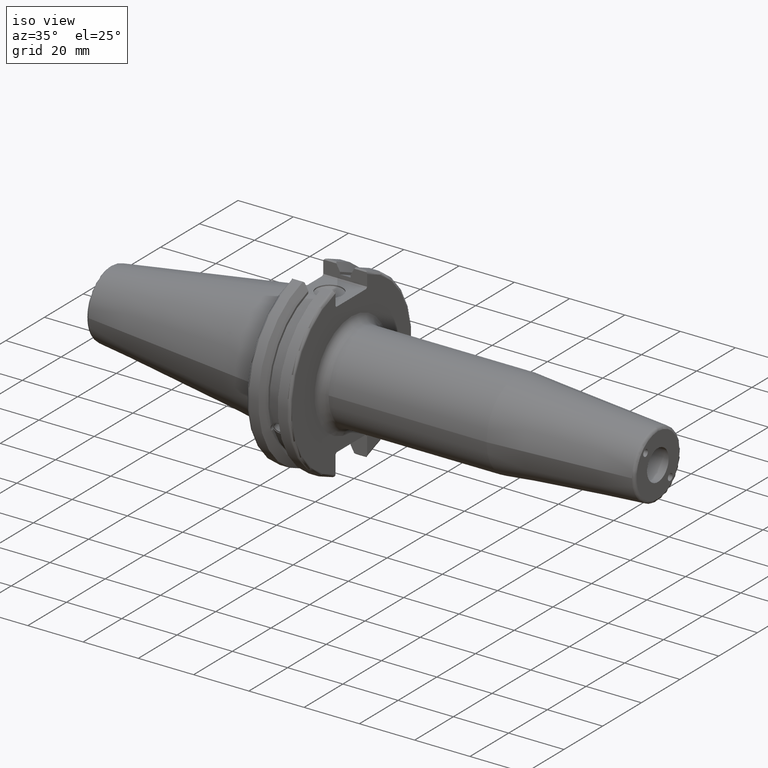
[diagram: clean part render]
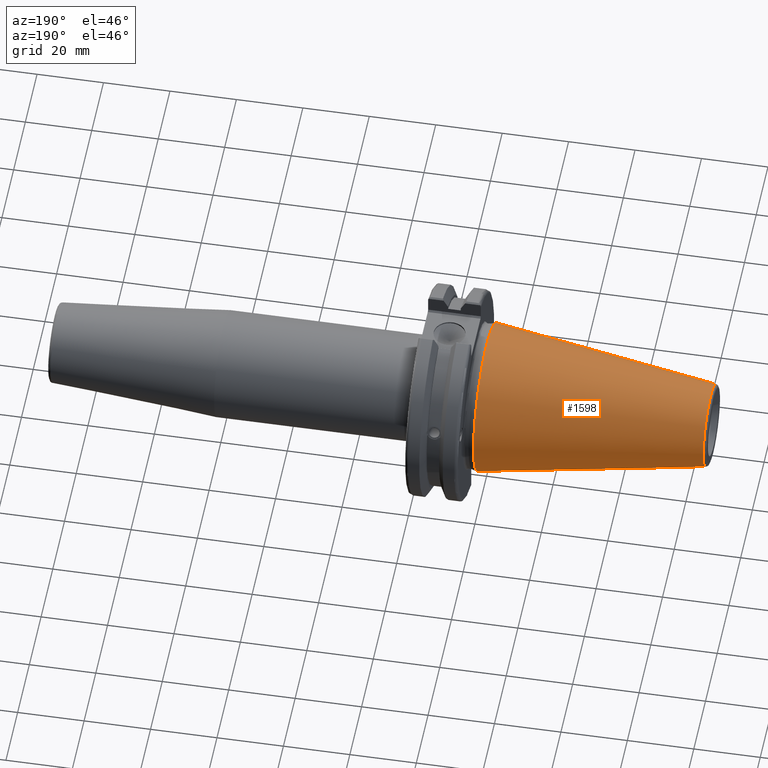
[diagram: tour spotlight — one face highlighted and labeled with its STEP entity id]
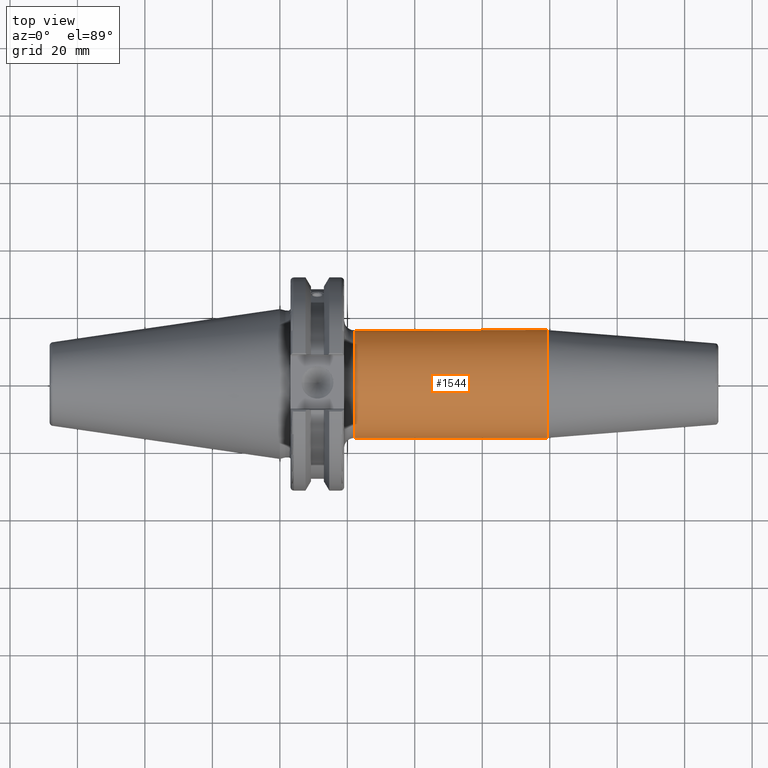
[diagram: tour spotlight — one face highlighted and labeled with its STEP entity id]
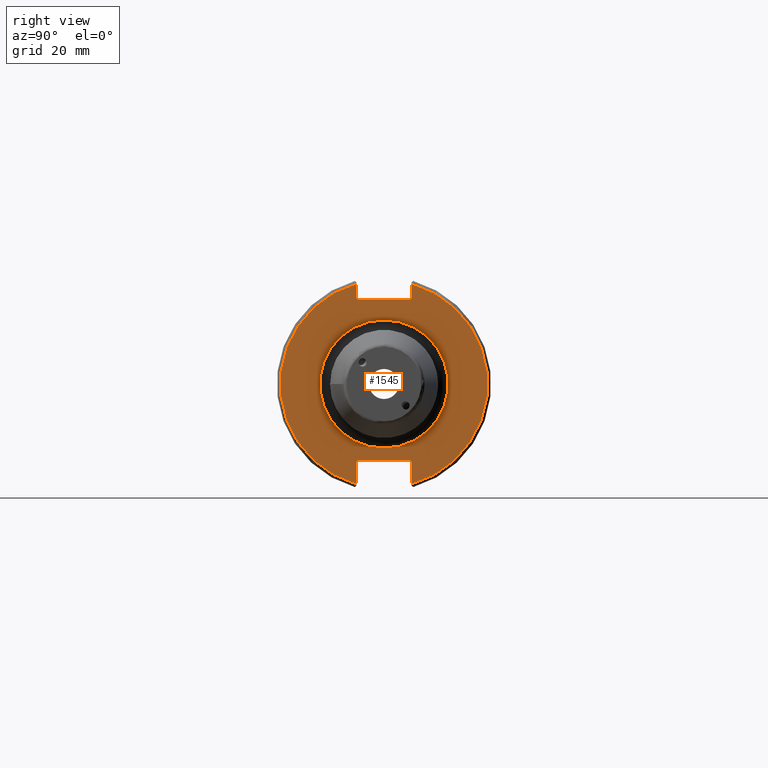
[diagram: tour spotlight — one face highlighted and labeled with its STEP entity id]
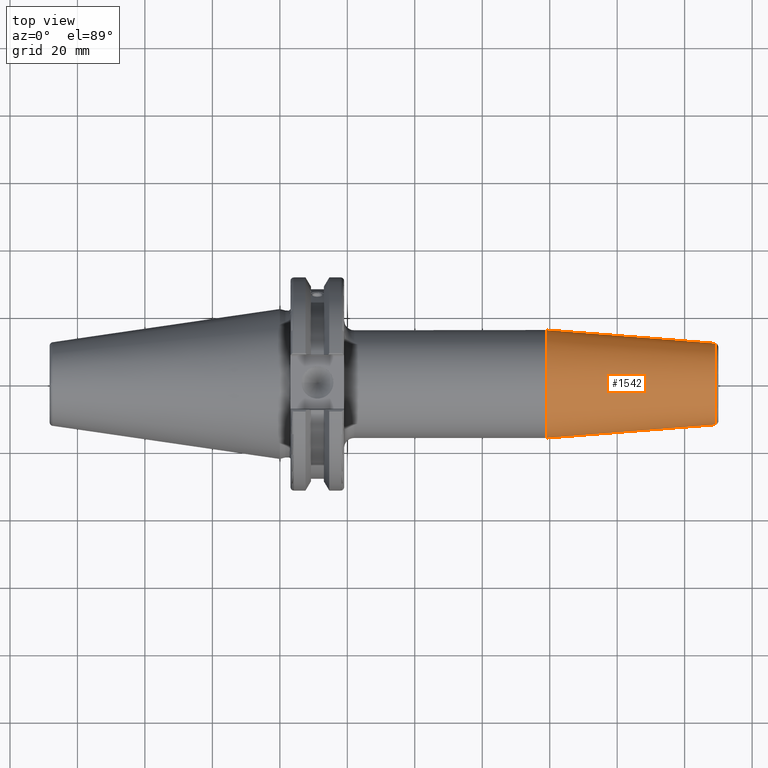
[diagram: tour spotlight — one face highlighted and labeled with its STEP entity id]
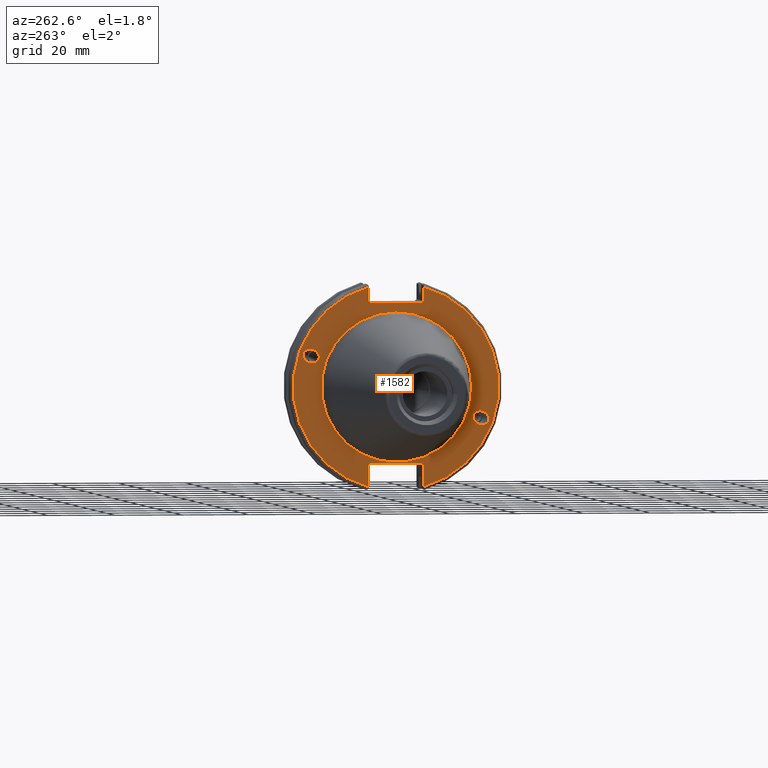
[diagram: tour spotlight — one face highlighted and labeled with its STEP entity id]
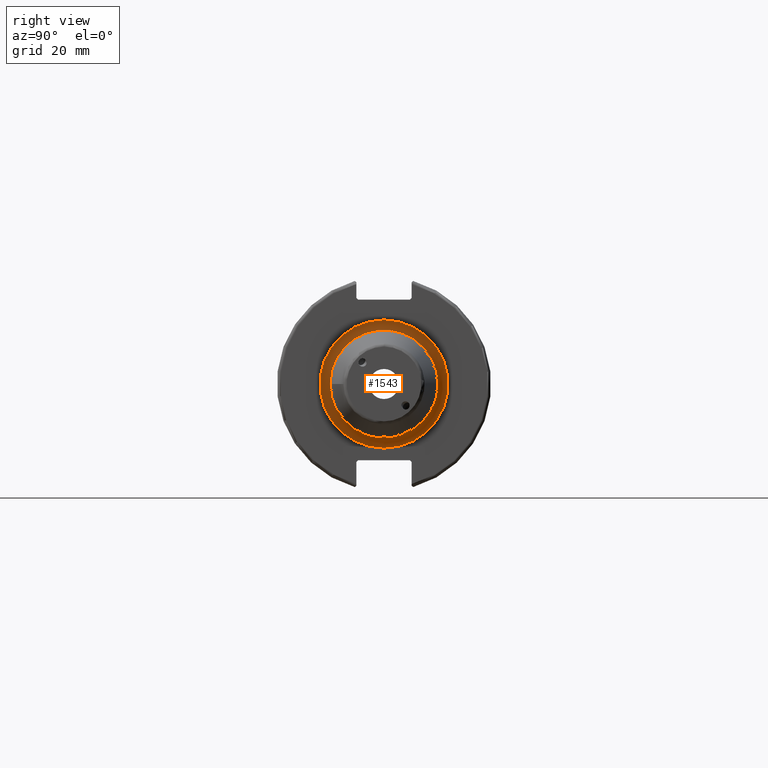
[diagram: tour spotlight — one face highlighted and labeled with its STEP entity id]
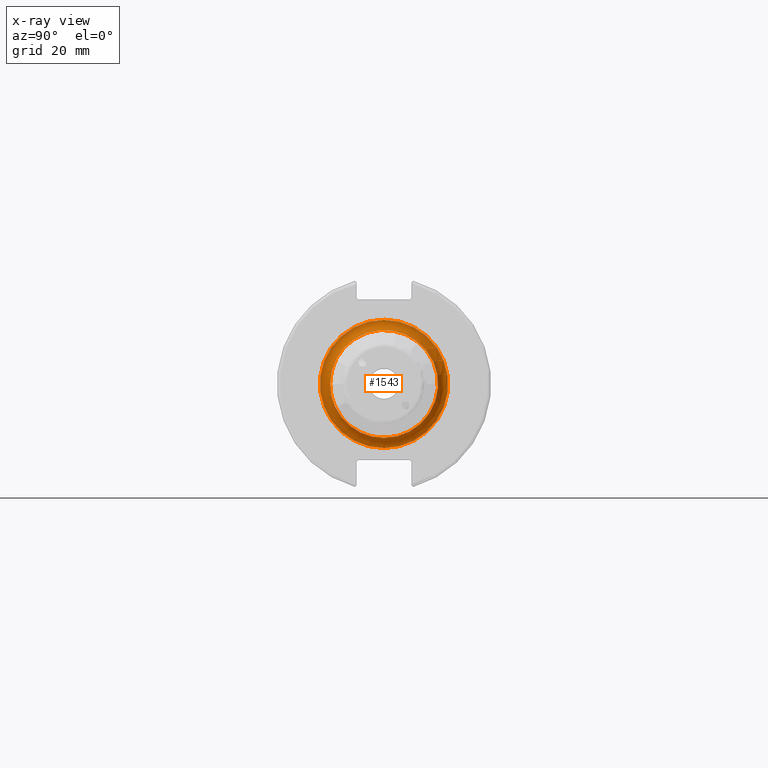
[diagram: x-ray of the same camera — body ghosted, this tour face saturated]
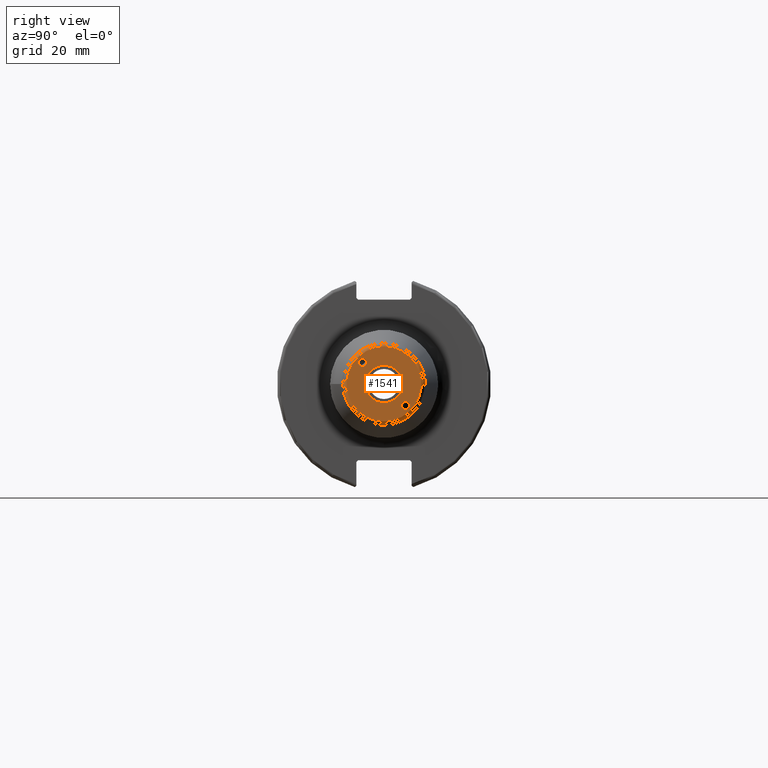
[diagram: tour spotlight — one face highlighted and labeled with its STEP entity id]
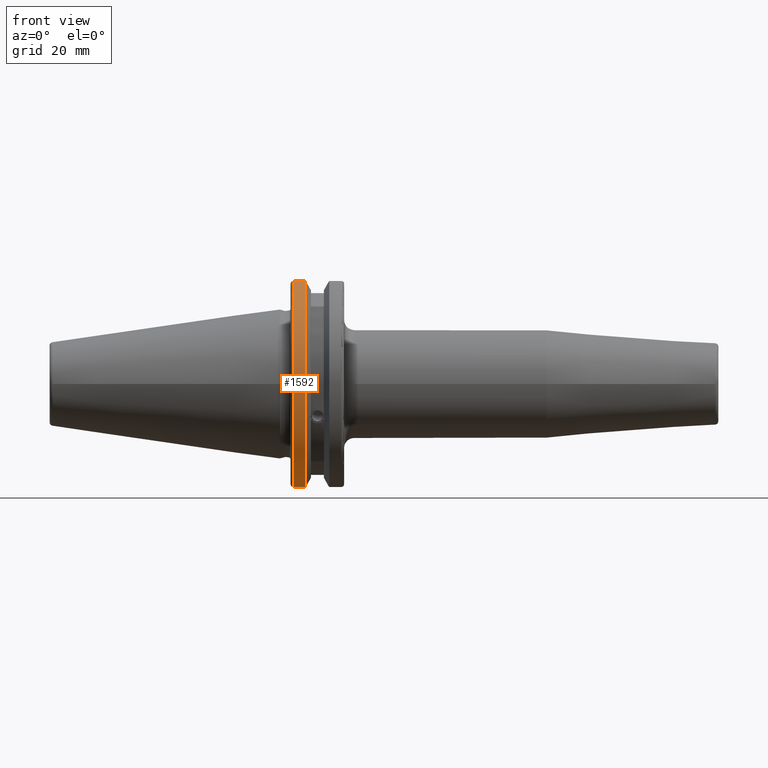
[diagram: tour spotlight — one face highlighted and labeled with its STEP entity id]
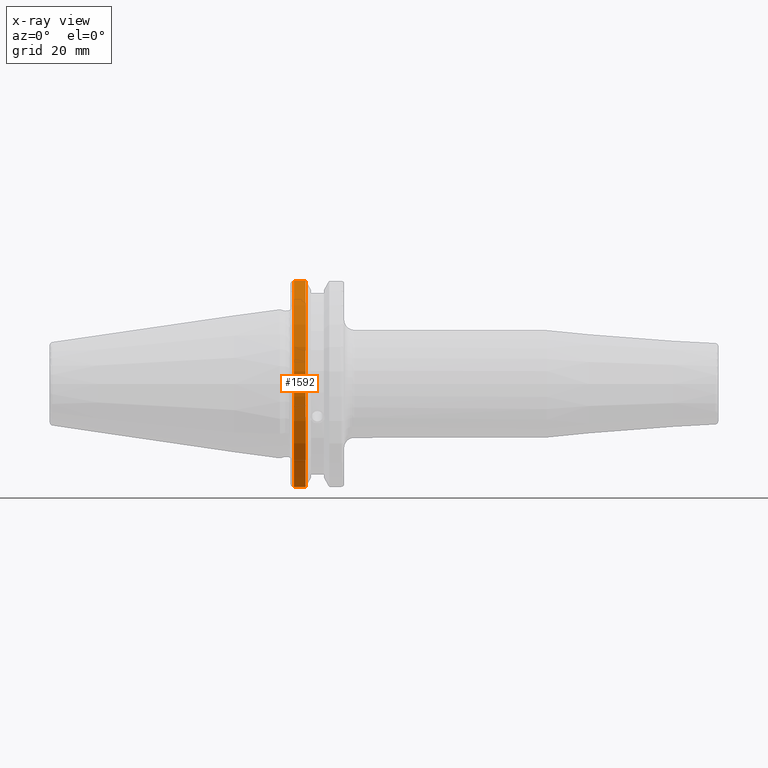
[diagram: x-ray of the same camera — body ghosted, this tour face saturated]
A machine part: a face-by-face anatomy tour. The part has 91 B-rep faces; the first image is the clean iso view, then the 8 largest visible faces are spotlighted one at a time (largest first), each with its STEP entity span.

Face 1 — auxiliary view, entity #1598. In plain terms, the highlighted conical surface has half-angle 8.297 deg.
Definition (entity closure, byte-faithful):
#237=FACE_OUTER_BOUND('',#344,.T.);
#344=EDGE_LOOP('',(#1389,#1390,#1391,#1392,#1393));
#453=LINE('',#3026,#551);
#551=VECTOR('',#2210,17.2484375);
#629=CIRCLE('',#1789,12.3966635780937);
#630=CIRCLE('',#1790,12.3966635780937);
#634=CIRCLE('',#1796,22.225);
#789=VERTEX_POINT('',#3013);
#790=VERTEX_POINT('',#3014);
#793=VERTEX_POINT('',#3024);
#1004=EDGE_CURVE('',#789,#790,#629,.T.);
#1005=EDGE_CURVE('',#790,#789,#630,.T.);
#1009=EDGE_CURVE('',#793,#793,#634,.T.);
#1010=EDGE_CURVE('',#793,#790,#453,.T.);
#1389=ORIENTED_EDGE('',*,*,#1009,.F.);
#1390=ORIENTED_EDGE('',*,*,#1010,.T.);
#1391=ORIENTED_EDGE('',*,*,#1004,.F.);
#1392=ORIENTED_EDGE('',*,*,#1005,.F.);
#1393=ORIENTED_EDGE('',*,*,#1010,.F.);
#1530=CONICAL_SURFACE('',#1795,17.2484375,0.144812498238939);
#1598=ADVANCED_FACE('',(#237),#1530,.T.);
#1789=AXIS2_PLACEMENT_3D('',#3015,#2194,#2195);
#1790=AXIS2_PLACEMENT_3D('',#3016,#2196,#2197);
#1795=AXIS2_PLACEMENT_3D('',#3023,#2206,#2207);
#1796=AXIS2_PLACEMENT_3D('',#3025,#2208,#2209);
#2194=DIRECTION('center_axis',(-1.,0.,0.));
#2195=DIRECTION('ref_axis',(0.,-1.,3.06161699786838E-17));
#2196=DIRECTION('center_axis',(-1.,0.,0.));
#2197=DIRECTION('ref_axis',(0.,-1.,3.06161699786838E-17));
#2206=DIRECTION('center_axis',(1.,0.,0.));
#2207=DIRECTION('ref_axis',(0.,1.,0.));
#2208=DIRECTION('center_axis',(1.,0.,0.));
#2209=DIRECTION('ref_axis',(0.,0.,-1.));
#2210=DIRECTION('',(-0.989532981063282,0.144306893071729,1.76724974695192E-17));
#3013=CARTESIAN_POINT('',(-67.3943068930717,-1.5181534371019E-15,12.3966635780937));
#3014=CARTESIAN_POINT('',(-67.3943068930718,-12.3966635780937,-1.5181534371019E-15));
#3015=CARTESIAN_POINT('Origin',(-67.3943068930717,0.,-1.89769179637738E-15));
#3016=CARTESIAN_POINT('Origin',(-67.3943068930717,0.,-1.89769179637738E-15));
#3023=CARTESIAN_POINT('Origin',(-34.125,0.,0.));
#3024=CARTESIAN_POINT('',(0.,-22.225,-2.72177751110499E-15));
#3025=CARTESIAN_POINT('Origin',(0.,0.,0.));
#3026=CARTESIAN_POINT('',(-34.125,-17.2484375,-2.11232437746682E-15));

Face 2 — top view, entity #1544. In plain terms, the highlighted cylindrical surface (bore or boss wall) has radius 16 mm, axis along (1, 0, 0).
Definition (entity closure, byte-faithful):
#146=CYLINDRICAL_SURFACE('',#1672,16.);
#183=FACE_OUTER_BOUND('',#277,.T.);
#277=EDGE_LOOP('',(#1076,#1077,#1078,#1079,#1080));
#380=LINE('',#2351,#478);
#478=VECTOR('',#1889,16.);
#578=CIRCLE('',#1666,16.);
#579=CIRCLE('',#1668,16.);
#582=CIRCLE('',#1671,16.);
#656=VERTEX_POINT('',#2339);
#657=VERTEX_POINT('',#2343);
#658=VERTEX_POINT('',#2344);
#818=EDGE_CURVE('',#656,#656,#578,.T.);
#819=EDGE_CURVE('',#657,#658,#579,.T.);
#822=EDGE_CURVE('',#658,#657,#582,.T.);
#823=EDGE_CURVE('',#656,#657,#380,.T.);
#1076=ORIENTED_EDGE('',*,*,#818,.F.);
#1077=ORIENTED_EDGE('',*,*,#823,.T.);
#1078=ORIENTED_EDGE('',*,*,#822,.F.);
#1079=ORIENTED_EDGE('',*,*,#819,.F.);
#1080=ORIENTED_EDGE('',*,*,#823,.F.);
#1544=ADVANCED_FACE('',(#183),#146,.T.);
#1666=AXIS2_PLACEMENT_3D('',#2341,#1875,#1876);
#1668=AXIS2_PLACEMENT_3D('',#2345,#1879,#1880);
#1671=AXIS2_PLACEMENT_3D('',#2349,#1885,#1886);
#1672=AXIS2_PLACEMENT_3D('',#2350,#1887,#1888);
#1875=DIRECTION('center_axis',(1.,0.,0.));
#1876=DIRECTION('ref_axis',(0.,0.,-1.));
#1879=DIRECTION('center_axis',(-1.,0.,0.));
#1880=DIRECTION('ref_axis',(0.,-1.,-1.22464679914735E-16));
#1885=DIRECTION('center_axis',(-1.,0.,0.));
#1886=DIRECTION('ref_axis',(0.,-1.,-1.22464679914735E-16));
#1887=DIRECTION('center_axis',(1.,0.,0.));
#1888=DIRECTION('ref_axis',(0.,1.,0.));
#1889=DIRECTION('',(-1.,0.,0.));
#2339=CARTESIAN_POINT('',(79.1751810553012,-16.,-1.95943487863577E-15));
#2341=CARTESIAN_POINT('Origin',(79.1751810553012,0.,0.));
#2343=CARTESIAN_POINT('',(22.05,-16.,-1.95943487863577E-15));
#2344=CARTESIAN_POINT('',(22.05,-1.95943487863577E-15,-16.));
#2345=CARTESIAN_POINT('Origin',(22.05,0.,0.));
#2349=CARTESIAN_POINT('Origin',(22.05,0.,0.));
#2350=CARTESIAN_POINT('Origin',(49.1125905276506,0.,0.));
#2351=CARTESIAN_POINT('',(49.1125905276506,-16.,-1.95943487863577E-15));

Face 3 — right view, entity #1545. In plain terms, the highlighted planar face has unit normal (1, 0, 0).
Definition (entity closure, byte-faithful):
#64=FACE_BOUND('',#279,.T.);
#80=PLANE('',#1673);
#184=FACE_OUTER_BOUND('',#278,.T.);
#278=EDGE_LOOP('',(#1081,#1082,#1083,#1084,#1085,#1086,#1087,#1088,#1089,
#1090,#1091,#1092));
#279=EDGE_LOOP('',(#1093));
#381=LINE('',#2357,#479);
#382=LINE('',#2359,#480);
#383=LINE('',#2361,#481);
#384=LINE('',#2363,#482);
#385=LINE('',#2365,#483);
#386=LINE('',#2369,#484);
#387=LINE('',#2371,#485);
#388=LINE('',#2373,#486);
#389=LINE('',#2375,#487);
#390=LINE('',#2376,#488);
#479=VECTOR('',#1894,10.);
#480=VECTOR('',#1895,10.);
#481=VECTOR('',#1896,10.);
#482=VECTOR('',#1897,10.);
#483=VECTOR('',#1898,10.);
#484=VECTOR('',#1901,10.);
#485=VECTOR('',#1902,10.);
#486=VECTOR('',#1903,10.);
#487=VECTOR('',#1904,10.);
#488=VECTOR('',#1905,10.);
#581=CIRCLE('',#1670,19.);
#583=CIRCLE('',#1674,30.75);
#584=CIRCLE('',#1675,30.75);
#659=VERTEX_POINT('',#2346);
#660=VERTEX_POINT('',#2353);
#661=VERTEX_POINT('',#2354);
#662=VERTEX_POINT('',#2356);
#663=VERTEX_POINT('',#2358);
#664=VERTEX_POINT('',#2360);
#665=VERTEX_POINT('',#2362);
#666=VERTEX_POINT('',#2364);
#667=VERTEX_POINT('',#2366);
#668=VERTEX_POINT('',#2368);
#669=VERTEX_POINT('',#2370);
#670=VERTEX_POINT('',#2372);
#671=VERTEX_POINT('',#2374);
#821=EDGE_CURVE('',#659,#659,#581,.T.);
#824=EDGE_CURVE('',#660,#661,#583,.T.);
#825=EDGE_CURVE('',#660,#662,#381,.T.);
#826=EDGE_CURVE('',#663,#662,#382,.T.);
#827=EDGE_CURVE('',#663,#664,#383,.T.);
#828=EDGE_CURVE('',#665,#664,#384,.T.);
#829=EDGE_CURVE('',#665,#666,#385,.T.);
#830=EDGE_CURVE('',#667,#666,#584,.T.);
#831=EDGE_CURVE('',#667,#668,#386,.T.);
#832=EDGE_CURVE('',#669,#668,#387,.T.);
#833=EDGE_CURVE('',#669,#670,#388,.T.);
#834=EDGE_CURVE('',#671,#670,#389,.T.);
#835=EDGE_CURVE('',#671,#661,#390,.T.);
#1081=ORIENTED_EDGE('',*,*,#824,.F.);
#1082=ORIENTED_EDGE('',*,*,#825,.T.);
#1083=ORIENTED_EDGE('',*,*,#826,.F.);
#1084=ORIENTED_EDGE('',*,*,#827,.T.);
#1085=ORIENTED_EDGE('',*,*,#828,.F.);
#1086=ORIENTED_EDGE('',*,*,#829,.T.);
#1087=ORIENTED_EDGE('',*,*,#830,.F.);
#1088=ORIENTED_EDGE('',*,*,#831,.T.);
#1089=ORIENTED_EDGE('',*,*,#832,.F.);
#1090=ORIENTED_EDGE('',*,*,#833,.T.);
#1091=ORIENTED_EDGE('',*,*,#834,.F.);
#1092=ORIENTED_EDGE('',*,*,#835,.T.);
#1093=ORIENTED_EDGE('',*,*,#821,.F.);
#1545=ADVANCED_FACE('',(#184,#64),#80,.T.);
#1670=AXIS2_PLACEMENT_3D('',#2348,#1883,#1884);
#1673=AXIS2_PLACEMENT_3D('',#2352,#1890,#1891);
#1674=AXIS2_PLACEMENT_3D('',#2355,#1892,#1893);
#1675=AXIS2_PLACEMENT_3D('',#2367,#1899,#1900);
#1883=DIRECTION('center_axis',(1.,0.,0.));
#1884=DIRECTION('ref_axis',(0.,-1.,-1.22464679914735E-16));
#1890=DIRECTION('center_axis',(1.,0.,0.));
#1891=DIRECTION('ref_axis',(0.,0.,-1.));
#1892=DIRECTION('center_axis',(-1.,0.,0.));
#1893=DIRECTION('ref_axis',(0.,1.,-6.12323399573677E-17));
#1894=DIRECTION('',(0.,0.,-1.));
#1895=DIRECTION('',(0.,0.707106781186549,0.707106781186546));
#1896=DIRECTION('',(0.,-1.,0.));
#1897=DIRECTION('',(0.,0.70710678118655,-0.707106781186545));
#1898=DIRECTION('',(0.,0.,1.));
#1899=DIRECTION('center_axis',(-1.,0.,0.));
#1900=DIRECTION('ref_axis',(0.,-1.,1.60812264967664E-16));
#1901=DIRECTION('',(0.,0.,1.));
#1902=DIRECTION('',(0.,-0.707106781186549,-0.707106781186546));
#1903=DIRECTION('',(0.,1.,0.));
#1904=DIRECTION('',(0.,-0.707106781186549,0.707106781186546));
#1905=DIRECTION('',(0.,0.,-1.));
#2346=CARTESIAN_POINT('',(19.05,-2.32682891837997E-15,-19.));
#2348=CARTESIAN_POINT('Origin',(19.05,0.,0.));
#2352=CARTESIAN_POINT('Origin',(19.05,0.,0.));
#2353=CARTESIAN_POINT('',(19.05,8.19,29.6392712461019));
#2354=CARTESIAN_POINT('',(19.05,8.19,-29.6392712461019));
#2355=CARTESIAN_POINT('Origin',(19.05,0.,0.));
#2356=CARTESIAN_POINT('',(19.05,8.19,25.5));
#2357=CARTESIAN_POINT('',(19.05,8.19,12.5));
#2358=CARTESIAN_POINT('',(19.05,7.69,25.));
#2359=CARTESIAN_POINT('',(19.05,-0.35750000000001,16.9525));
#2360=CARTESIAN_POINT('',(19.05,-7.69,25.));
#2361=CARTESIAN_POINT('',(19.05,0.,25.));
#2362=CARTESIAN_POINT('',(19.05,-8.19,25.5));
#2363=CARTESIAN_POINT('',(19.05,0.357500000000014,16.9525));
#2364=CARTESIAN_POINT('',(19.05,-8.19,29.6392712461019));
#2365=CARTESIAN_POINT('',(19.05,-8.19,12.5));
#2366=CARTESIAN_POINT('',(19.05,-8.19,-29.6392712461019));
#2367=CARTESIAN_POINT('Origin',(19.05,0.,0.));
#2368=CARTESIAN_POINT('',(19.05,-8.19,-23.1));
#2369=CARTESIAN_POINT('',(19.05,-8.19,-11.3));
#2370=CARTESIAN_POINT('',(19.05,-7.69,-22.6));
#2371=CARTESIAN_POINT('',(19.05,-0.242499999999991,-15.1525));
#2372=CARTESIAN_POINT('',(19.05,7.69,-22.6));
#2373=CARTESIAN_POINT('',(19.05,-2.77555756156289E-16,-22.6));
#2374=CARTESIAN_POINT('',(19.05,8.19,-23.1));
#2375=CARTESIAN_POINT('',(19.05,0.242499999999989,-15.1525));
#2376=CARTESIAN_POINT('',(19.05,8.19,-11.3));

Face 4 — top view, entity #1542. In plain terms, the highlighted conical surface has half-angle 4.5 deg.
Definition (entity closure, byte-faithful):
#181=FACE_OUTER_BOUND('',#275,.T.);
#275=EDGE_LOOP('',(#1066,#1067,#1068,#1069,#1070));
#379=LINE('',#2340,#477);
#477=VECTOR('',#1874,14.);
#575=CIRCLE('',#1661,12.0725268420749);
#576=CIRCLE('',#1662,12.0725268420749);
#578=CIRCLE('',#1666,16.);
#653=VERTEX_POINT('',#2330);
#654=VERTEX_POINT('',#2332);
#656=VERTEX_POINT('',#2339);
#814=EDGE_CURVE('',#653,#654,#575,.T.);
#815=EDGE_CURVE('',#654,#653,#576,.T.);
#817=EDGE_CURVE('',#654,#656,#379,.T.);
#818=EDGE_CURVE('',#656,#656,#578,.T.);
#1066=ORIENTED_EDGE('',*,*,#815,.F.);
#1067=ORIENTED_EDGE('',*,*,#817,.T.);
#1068=ORIENTED_EDGE('',*,*,#818,.T.);
#1069=ORIENTED_EDGE('',*,*,#817,.F.);
#1070=ORIENTED_EDGE('',*,*,#814,.F.);
#1523=CONICAL_SURFACE('',#1665,14.,0.0785398163397448);
#1542=ADVANCED_FACE('',(#181),#1523,.T.);
#1661=AXIS2_PLACEMENT_3D('',#2333,#1864,#1865);
#1662=AXIS2_PLACEMENT_3D('',#2334,#1866,#1867);
#1665=AXIS2_PLACEMENT_3D('',#2338,#1872,#1873);
#1666=AXIS2_PLACEMENT_3D('',#2341,#1875,#1876);
#1864=DIRECTION('center_axis',(1.,0.,0.));
#1865=DIRECTION('ref_axis',(0.,-1.,3.06161699786838E-17));
#1866=DIRECTION('center_axis',(1.,0.,0.));
#1867=DIRECTION('ref_axis',(0.,-1.,3.06161699786838E-17));
#1872=DIRECTION('center_axis',(-1.,0.,0.));
#1873=DIRECTION('ref_axis',(0.,1.,0.));
#1874=DIRECTION('',(-0.996917333733128,-0.078459095727845,-9.60846804471011E-18));
#1875=DIRECTION('center_axis',(1.,0.,0.));
#1876=DIRECTION('ref_axis',(0.,0.,-1.));
#2330=CARTESIAN_POINT('',(129.078459095728,-1.47845813547676E-15,12.0725268420749));
#2332=CARTESIAN_POINT('',(129.078459095728,-12.0725268420749,-1.47845813547676E-15));
#2333=CARTESIAN_POINT('Origin',(129.078459095728,0.,-1.84807266934594E-15));
#2334=CARTESIAN_POINT('Origin',(129.078459095728,0.,-1.84807266934594E-15));
#2338=CARTESIAN_POINT('Origin',(104.587590527651,0.,0.));
#2339=CARTESIAN_POINT('',(79.1751810553012,-16.,-1.95943487863577E-15));
#2340=CARTESIAN_POINT('',(104.587590527651,-14.,-1.71450551880629E-15));
#2341=CARTESIAN_POINT('Origin',(79.1751810553012,0.,0.));

Face 5 — auxiliary view, entity #1582. In plain terms, the highlighted planar face has unit normal (-1, 0, 0).
Definition (entity closure, byte-faithful):
#73=FACE_BOUND('',#325,.T.);
#74=FACE_BOUND('',#326,.T.);
#75=FACE_BOUND('',#327,.T.);
#91=PLANE('',#1766);
#134=ELLIPSE('',#1713,2.44154917752292,2.00000000000001);
#143=ELLIPSE('',#1756,2.44154917752292,2.00000000000001);
#221=FACE_OUTER_BOUND('',#324,.T.);
#324=EDGE_LOOP('',(#1282,#1283,#1284,#1285,#1286,#1287,#1288,#1289,#1290,
#1291,#1292,#1293));
#325=EDGE_LOOP('',(#1294));
#326=EDGE_LOOP('',(#1295));
#327=EDGE_LOOP('',(#1296));
#426=LINE('',#2800,#524);
#427=LINE('',#2802,#525);
#428=LINE('',#2804,#526);
#429=LINE('',#2806,#527);
#430=LINE('',#2808,#528);
#431=LINE('',#2812,#529);
#432=LINE('',#2814,#530);
#433=LINE('',#2816,#531);
#434=LINE('',#2818,#532);
#435=LINE('',#2819,#533);
#524=VECTOR('',#2125,10.);
#525=VECTOR('',#2126,10.);
#526=VECTOR('',#2127,10.);
#527=VECTOR('',#2128,10.);
#528=VECTOR('',#2129,10.);
#529=VECTOR('',#2132,10.);
#530=VECTOR('',#2133,10.);
#531=VECTOR('',#2134,10.);
#532=VECTOR('',#2135,10.);
#533=VECTOR('',#2136,10.);
#619=CIRCLE('',#1764,22.3);
#621=CIRCLE('',#1767,30.75);
#622=CIRCLE('',#1768,30.75);
#705=VERTEX_POINT('',#2593);
#745=VERTEX_POINT('',#2776);
#750=VERTEX_POINT('',#2791);
#751=VERTEX_POINT('',#2796);
#752=VERTEX_POINT('',#2797);
#753=VERTEX_POINT('',#2799);
#754=VERTEX_POINT('',#2801);
#755=VERTEX_POINT('',#2803);
#756=VERTEX_POINT('',#2805);
#757=VERTEX_POINT('',#2807);
#758=VERTEX_POINT('',#2809);
#759=VERTEX_POINT('',#2811);
#760=VERTEX_POINT('',#2813);
#761=VERTEX_POINT('',#2815);
#762=VERTEX_POINT('',#2817);
#882=EDGE_CURVE('',#705,#705,#134,.T.);
#938=EDGE_CURVE('',#745,#745,#143,.T.);
#945=EDGE_CURVE('',#750,#750,#619,.T.);
#947=EDGE_CURVE('',#751,#752,#621,.T.);
#948=EDGE_CURVE('',#751,#753,#426,.T.);
#949=EDGE_CURVE('',#754,#753,#427,.T.);
#950=EDGE_CURVE('',#754,#755,#428,.T.);
#951=EDGE_CURVE('',#756,#755,#429,.T.);
#952=EDGE_CURVE('',#756,#757,#430,.T.);
#953=EDGE_CURVE('',#758,#757,#622,.T.);
#954=EDGE_CURVE('',#758,#759,#431,.T.);
#955=EDGE_CURVE('',#760,#759,#432,.T.);
#956=EDGE_CURVE('',#760,#761,#433,.T.);
#957=EDGE_CURVE('',#762,#761,#434,.T.);
#958=EDGE_CURVE('',#762,#752,#435,.T.);
#1282=ORIENTED_EDGE('',*,*,#947,.F.);
#1283=ORIENTED_EDGE('',*,*,#948,.T.);
#1284=ORIENTED_EDGE('',*,*,#949,.F.);
#1285=ORIENTED_EDGE('',*,*,#950,.T.);
#1286=ORIENTED_EDGE('',*,*,#951,.F.);
#1287=ORIENTED_EDGE('',*,*,#952,.T.);
#1288=ORIENTED_EDGE('',*,*,#953,.F.);
#1289=ORIENTED_EDGE('',*,*,#954,.T.);
#1290=ORIENTED_EDGE('',*,*,#955,.F.);
#1291=ORIENTED_EDGE('',*,*,#956,.T.);
#1292=ORIENTED_EDGE('',*,*,#957,.F.);
#1293=ORIENTED_EDGE('',*,*,#958,.T.);
#1294=ORIENTED_EDGE('',*,*,#882,.T.);
#1295=ORIENTED_EDGE('',*,*,#938,.T.);
#1296=ORIENTED_EDGE('',*,*,#945,.F.);
#1582=ADVANCED_FACE('',(#221,#73,#74,#75),#91,.T.);
#1713=AXIS2_PLACEMENT_3D('',#2595,#1996,#1997);
#1756=AXIS2_PLACEMENT_3D('',#2778,#2099,#2100);
#1764=AXIS2_PLACEMENT_3D('',#2793,#2117,#2118);
#1766=AXIS2_PLACEMENT_3D('',#2795,#2121,#2122);
#1767=AXIS2_PLACEMENT_3D('',#2798,#2123,#2124);
#1768=AXIS2_PLACEMENT_3D('',#2810,#2130,#2131);
#1996=DIRECTION('center_axis',(1.,0.,0.));
#1997=DIRECTION('ref_axis',(5.68400912649E-17,-0.939692620785909,-0.342020143325667));
#2099=DIRECTION('center_axis',(1.,0.,0.));
#2100=DIRECTION('ref_axis',(5.68400912649E-17,0.939692620785909,0.342020143325667));
#2117=DIRECTION('center_axis',(-1.,0.,0.));
#2118=DIRECTION('ref_axis',(0.,-1.,1.83697019872103E-16));
#2121=DIRECTION('center_axis',(-1.,0.,0.));
#2122=DIRECTION('ref_axis',(0.,0.,1.));
#2123=DIRECTION('center_axis',(1.,0.,0.));
#2124=DIRECTION('ref_axis',(0.,-1.,1.60812264967664E-16));
#2125=DIRECTION('',(0.,0.,-1.));
#2126=DIRECTION('',(0.,-0.70710678118655,0.707106781186545));
#2127=DIRECTION('',(0.,1.,0.));
#2128=DIRECTION('',(0.,-0.707106781186549,-0.707106781186546));
#2129=DIRECTION('',(0.,0.,1.));
#2130=DIRECTION('center_axis',(1.,0.,0.));
#2131=DIRECTION('ref_axis',(0.,1.,1.60812264967664E-16));
#2132=DIRECTION('',(0.,0.,1.));
#2133=DIRECTION('',(0.,0.707106781186549,-0.707106781186546));
#2134=DIRECTION('',(0.,-1.,0.));
#2135=DIRECTION('',(0.,0.707106781186549,0.707106781186546));
#2136=DIRECTION('',(0.,0.,-1.));
#2593=CARTESIAN_POINT('',(3.175,-23.0773950158153,-8.39948487016));
#2595=CARTESIAN_POINT('Origin',(3.175,-25.3717007612195,-9.23454386979305));
#2776=CARTESIAN_POINT('',(3.175,23.0773950158153,8.39948487016));
#2778=CARTESIAN_POINT('Origin',(3.175,25.3717007612195,9.23454386979306));
#2791=CARTESIAN_POINT('',(3.175,-2.7309623620986E-15,22.3));
#2793=CARTESIAN_POINT('Origin',(3.175,0.,0.));
#2795=CARTESIAN_POINT('Origin',(3.175,31.75,0.));
#2796=CARTESIAN_POINT('',(3.175,-8.18999999999999,29.6392712461019));
#2797=CARTESIAN_POINT('',(3.175,-8.19,-29.6392712461019));
#2798=CARTESIAN_POINT('Origin',(3.175,0.,0.));
#2799=CARTESIAN_POINT('',(3.175,-8.18999999999999,25.5));
#2800=CARTESIAN_POINT('',(3.175,-8.18999999999999,12.5));
#2801=CARTESIAN_POINT('',(3.175,-7.68999999999999,25.));
#2802=CARTESIAN_POINT('',(3.175,8.29500000000007,9.01500000000004));
#2803=CARTESIAN_POINT('',(3.175,7.69,25.));
#2804=CARTESIAN_POINT('',(3.175,15.875,25.));
#2805=CARTESIAN_POINT('',(3.175,8.19,25.5));
#2806=CARTESIAN_POINT('',(3.175,7.58000000000002,24.89));
#2807=CARTESIAN_POINT('',(3.175,8.19,29.6392712461019));
#2808=CARTESIAN_POINT('',(3.175,8.19,12.5));
#2809=CARTESIAN_POINT('',(3.175,8.18999999999999,-29.6392712461019));
#2810=CARTESIAN_POINT('Origin',(3.175,0.,0.));
#2811=CARTESIAN_POINT('',(3.175,8.18999999999999,-23.1));
#2812=CARTESIAN_POINT('',(3.175,8.18999999999999,-11.3));
#2813=CARTESIAN_POINT('',(3.175,7.69,-22.6));
#2814=CARTESIAN_POINT('',(3.175,8.18000000000002,-23.09));
#2815=CARTESIAN_POINT('',(3.175,-7.69,-22.6));
#2816=CARTESIAN_POINT('',(3.175,15.875,-22.6));
#2817=CARTESIAN_POINT('',(3.175,-8.19,-23.1));
#2818=CARTESIAN_POINT('',(3.175,7.69500000000004,-7.21500000000002));
#2819=CARTESIAN_POINT('',(3.175,-8.19,-11.3));

Face 6 — right view, entity #1543. An x-ray twin of the same camera follows (body ghosted, this face saturated) — the face is partly hidden behind the body. In plain terms, the highlighted toroidal blend (fillet) surface has major radius 19 mm and minor (blend) radius 3 mm.
Definition (entity closure, byte-faithful):
#117=TOROIDAL_SURFACE('',#1667,19.,3.);
#182=FACE_OUTER_BOUND('',#276,.T.);
#276=EDGE_LOOP('',(#1071,#1072,#1073,#1074,#1075));
#579=CIRCLE('',#1668,16.);
#580=CIRCLE('',#1669,3.);
#581=CIRCLE('',#1670,19.);
#582=CIRCLE('',#1671,16.);
#657=VERTEX_POINT('',#2343);
#658=VERTEX_POINT('',#2344);
#659=VERTEX_POINT('',#2346);
#819=EDGE_CURVE('',#657,#658,#579,.T.);
#820=EDGE_CURVE('',#658,#659,#580,.T.);
#821=EDGE_CURVE('',#659,#659,#581,.T.);
#822=EDGE_CURVE('',#658,#657,#582,.T.);
#1071=ORIENTED_EDGE('',*,*,#819,.T.);
#1072=ORIENTED_EDGE('',*,*,#820,.T.);
#1073=ORIENTED_EDGE('',*,*,#821,.T.);
#1074=ORIENTED_EDGE('',*,*,#820,.F.);
#1075=ORIENTED_EDGE('',*,*,#822,.T.);
#1543=ADVANCED_FACE('',(#182),#117,.F.);
#1667=AXIS2_PLACEMENT_3D('',#2342,#1877,#1878);
#1668=AXIS2_PLACEMENT_3D('',#2345,#1879,#1880);
#1669=AXIS2_PLACEMENT_3D('',#2347,#1881,#1882);
#1670=AXIS2_PLACEMENT_3D('',#2348,#1883,#1884);
#1671=AXIS2_PLACEMENT_3D('',#2349,#1885,#1886);
#1877=DIRECTION('center_axis',(-1.,0.,0.));
#1878=DIRECTION('ref_axis',(0.,0.,1.));
#1879=DIRECTION('center_axis',(-1.,0.,0.));
#1880=DIRECTION('ref_axis',(0.,-1.,-1.22464679914735E-16));
#1881=DIRECTION('center_axis',(0.,-1.,1.22464679914735E-16));
#1882=DIRECTION('ref_axis',(0.,-1.22464679914735E-16,-1.));
#1883=DIRECTION('center_axis',(1.,0.,0.));
#1884=DIRECTION('ref_axis',(0.,-1.,-1.22464679914735E-16));
#1885=DIRECTION('center_axis',(-1.,0.,0.));
#1886=DIRECTION('ref_axis',(0.,-1.,-1.22464679914735E-16));
#2342=CARTESIAN_POINT('Origin',(22.05,0.,0.));
#2343=CARTESIAN_POINT('',(22.05,-16.,-1.95943487863577E-15));
#2344=CARTESIAN_POINT('',(22.05,-1.95943487863577E-15,-16.));
#2345=CARTESIAN_POINT('Origin',(22.05,0.,0.));
#2346=CARTESIAN_POINT('',(19.05,-2.32682891837997E-15,-19.));
#2347=CARTESIAN_POINT('Origin',(22.05,-2.32682891837997E-15,-19.));
#2348=CARTESIAN_POINT('Origin',(19.05,0.,0.));
#2349=CARTESIAN_POINT('Origin',(22.05,0.,0.));

Face 7 — right view, entity #1541. In plain terms, the highlighted planar face has unit normal (1, 0, 0).
Definition (entity closure, byte-faithful):
#61=FACE_BOUND('',#272,.T.);
#62=FACE_BOUND('',#273,.T.);
#63=FACE_BOUND('',#274,.T.);
#79=PLANE('',#1663);
#124=ELLIPSE('',#1653,1.2302494347154,1.2295);
#125=ELLIPSE('',#1657,1.2302494347154,1.2295);
#180=FACE_OUTER_BOUND('',#271,.T.);
#271=EDGE_LOOP('',(#1062));
#272=EDGE_LOOP('',(#1063));
#273=EDGE_LOOP('',(#1064));
#274=EDGE_LOOP('',(#1065));
#573=CIRCLE('',#1659,11.0756095083418);
#577=CIRCLE('',#1664,5.55625);
#648=VERTEX_POINT('',#2315);
#651=VERTEX_POINT('',#2324);
#652=VERTEX_POINT('',#2328);
#655=VERTEX_POINT('',#2336);
#806=EDGE_CURVE('',#648,#648,#124,.T.);
#810=EDGE_CURVE('',#651,#651,#125,.T.);
#812=EDGE_CURVE('',#652,#652,#573,.T.);
#816=EDGE_CURVE('',#655,#655,#577,.T.);
#1062=ORIENTED_EDGE('',*,*,#812,.F.);
#1063=ORIENTED_EDGE('',*,*,#806,.T.);
#1064=ORIENTED_EDGE('',*,*,#810,.T.);
#1065=ORIENTED_EDGE('',*,*,#816,.F.);
#1541=ADVANCED_FACE('',(#180,#61,#62,#63),#79,.T.);
#1653=AXIS2_PLACEMENT_3D('',#2316,#1845,#1846);
#1657=AXIS2_PLACEMENT_3D('',#2325,#1855,#1856);
#1659=AXIS2_PLACEMENT_3D('',#2329,#1860,#1861);
#1663=AXIS2_PLACEMENT_3D('',#2335,#1868,#1869);
#1664=AXIS2_PLACEMENT_3D('',#2337,#1870,#1871);
#1845=DIRECTION('center_axis',(-1.,0.,0.));
#1846=DIRECTION('ref_axis',(0.,-0.707106781186452,0.707106781186643));
#1855=DIRECTION('center_axis',(-1.,0.,0.));
#1856=DIRECTION('ref_axis',(0.,0.707106781186452,-0.707106781186643));
#1860=DIRECTION('center_axis',(-1.,0.,0.));
#1861=DIRECTION('ref_axis',(0.,-1.,1.83697019872103E-16));
#1868=DIRECTION('center_axis',(1.,0.,0.));
#1869=DIRECTION('ref_axis',(0.,0.,-1.));
#1870=DIRECTION('center_axis',(1.,0.,0.));
#1871=DIRECTION('ref_axis',(0.,0.,-1.));
#2315=CARTESIAN_POINT('',(130.,-5.13408625623692,6.36321159599831));
#2316=CARTESIAN_POINT('Origin',(130.,-6.36396103067893,6.36396103067893));
#2324=CARTESIAN_POINT('',(130.,5.13408625623692,-6.36321159599831));
#2325=CARTESIAN_POINT('Origin',(130.,6.36396103067893,-6.36396103067893));
#2328=CARTESIAN_POINT('',(130.,-1.35637097329968E-15,11.0756095083418));
#2329=CARTESIAN_POINT('Origin',(130.,0.,0.));
#2335=CARTESIAN_POINT('Origin',(130.,5.55625,0.));
#2336=CARTESIAN_POINT('',(130.,-5.55625,-6.80444377776248E-16));
#2337=CARTESIAN_POINT('Origin',(130.,0.,0.));

Face 8 — front view, entity #1592. An x-ray twin of the same camera follows (body ghosted, this face saturated) — the face is partly hidden behind the body. In plain terms, the highlighted cylindrical surface (partial cylindrical patch) has radius 31.75 mm, axis along (1, 0, 0).
Definition (entity closure, byte-faithful):
#167=CYLINDRICAL_SURFACE('',#1782,31.75);
#231=FACE_OUTER_BOUND('',#337,.T.);
#337=EDGE_LOOP('',(#1364,#1365,#1366,#1367));
#450=LINE('',#2971,#548);
#451=LINE('',#2977,#549);
#548=VECTOR('',#2177,10.);
#549=VECTOR('',#2180,10.);
#626=CIRCLE('',#1780,31.75);
#627=CIRCLE('',#1783,31.75);
#782=VERTEX_POINT('',#2950);
#783=VERTEX_POINT('',#2959);
#784=VERTEX_POINT('',#2970);
#785=VERTEX_POINT('',#2976);
#992=EDGE_CURVE('',#782,#783,#626,.T.);
#994=EDGE_CURVE('',#783,#784,#450,.T.);
#996=EDGE_CURVE('',#785,#782,#451,.T.);
#997=EDGE_CURVE('',#784,#785,#627,.T.);
#1364=ORIENTED_EDGE('',*,*,#992,.F.);
#1365=ORIENTED_EDGE('',*,*,#996,.F.);
#1366=ORIENTED_EDGE('',*,*,#997,.F.);
#1367=ORIENTED_EDGE('',*,*,#994,.F.);
#1592=ADVANCED_FACE('',(#231),#167,.T.);
#1780=AXIS2_PLACEMENT_3D('',#2960,#2173,#2174);
#1782=AXIS2_PLACEMENT_3D('',#2975,#2178,#2179);
#1783=AXIS2_PLACEMENT_3D('',#2978,#2181,#2182);
#2173=DIRECTION('center_axis',(-1.,0.,0.));
#2174=DIRECTION('ref_axis',(0.,-1.,1.60812264967664E-16));
#2177=DIRECTION('',(1.,0.,0.));
#2178=DIRECTION('center_axis',(1.,0.,0.));
#2179=DIRECTION('ref_axis',(0.,-1.,1.22464679914735E-16));
#2180=DIRECTION('',(-1.,0.,0.));
#2181=DIRECTION('center_axis',(1.,0.,0.));
#2182=DIRECTION('ref_axis',(0.,0.,-1.));
#2950=CARTESIAN_POINT('',(4.175,-8.67204822802685,-30.5427254764662));
#2959=CARTESIAN_POINT('',(4.175,-8.67204822802685,30.5427254764662));
#2960=CARTESIAN_POINT('Origin',(4.175,0.,0.));
#2970=CARTESIAN_POINT('',(7.60793323092436,-8.67204822802685,30.5427254764662));
#2971=CARTESIAN_POINT('',(5.39146661546218,-8.67204822802685,30.5427254764662));
#2975=CARTESIAN_POINT('Origin',(5.39146661546218,0.,0.));
#2976=CARTESIAN_POINT('',(7.60793323092436,-8.67204822802685,-30.5427254764662));
#2977=CARTESIAN_POINT('',(5.39146661546218,-8.67204822802685,-30.5427254764662));
#2978=CARTESIAN_POINT('Origin',(7.60793323092436,0.,0.));